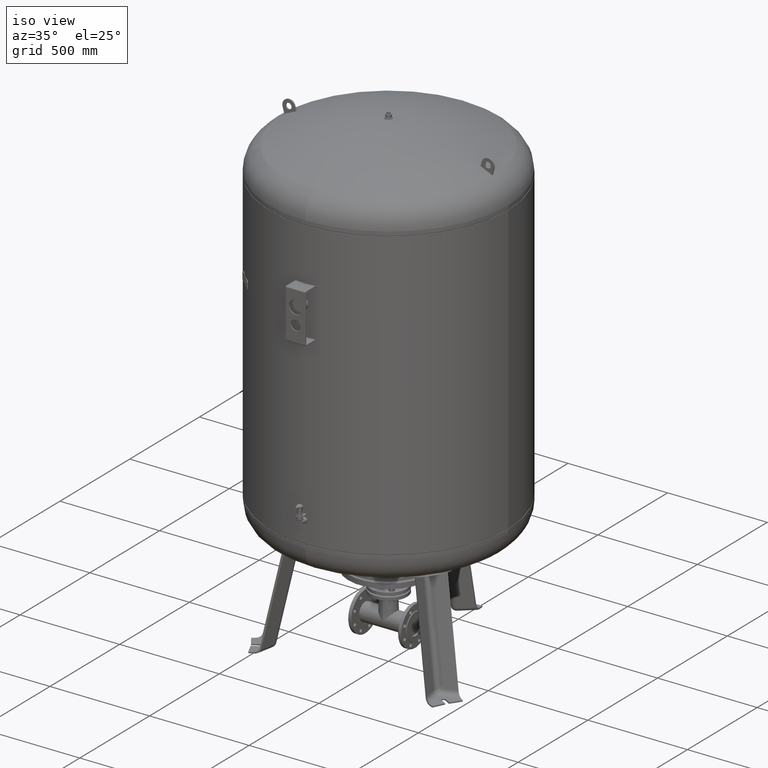
[diagram: clean part render]
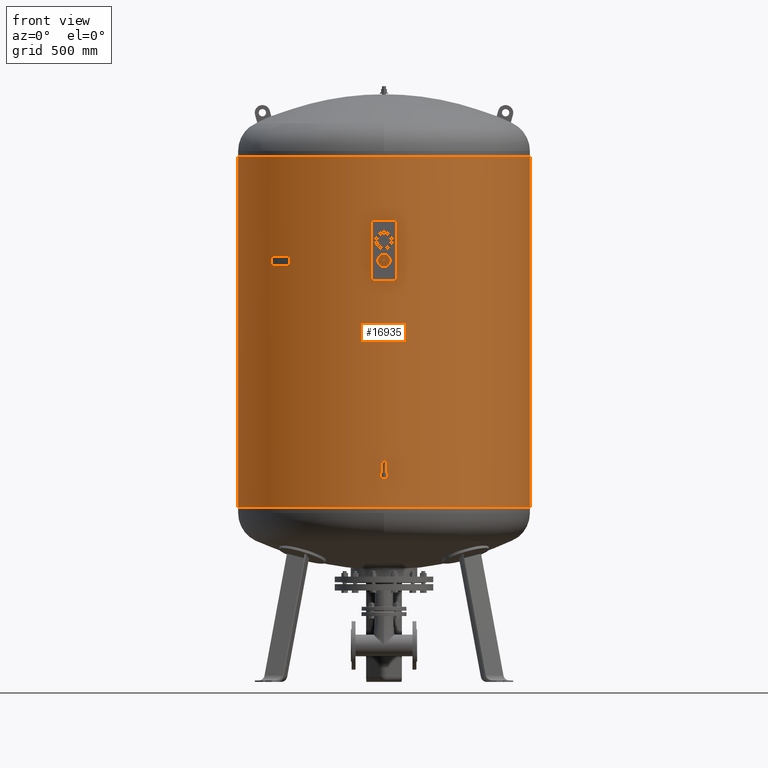
[diagram: tour spotlight — one face highlighted and labeled with its STEP entity id]
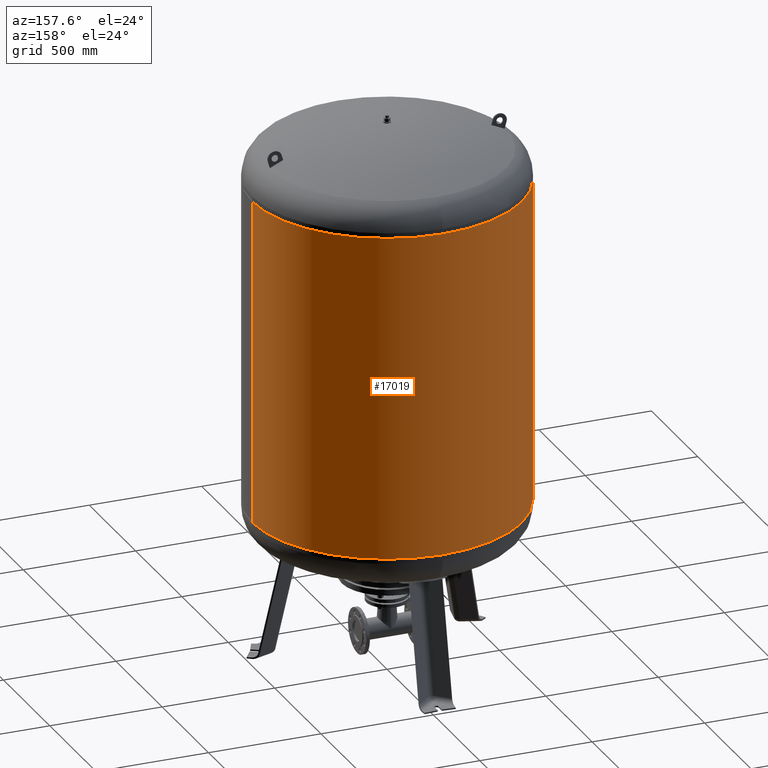
[diagram: tour spotlight — one face highlighted and labeled with its STEP entity id]
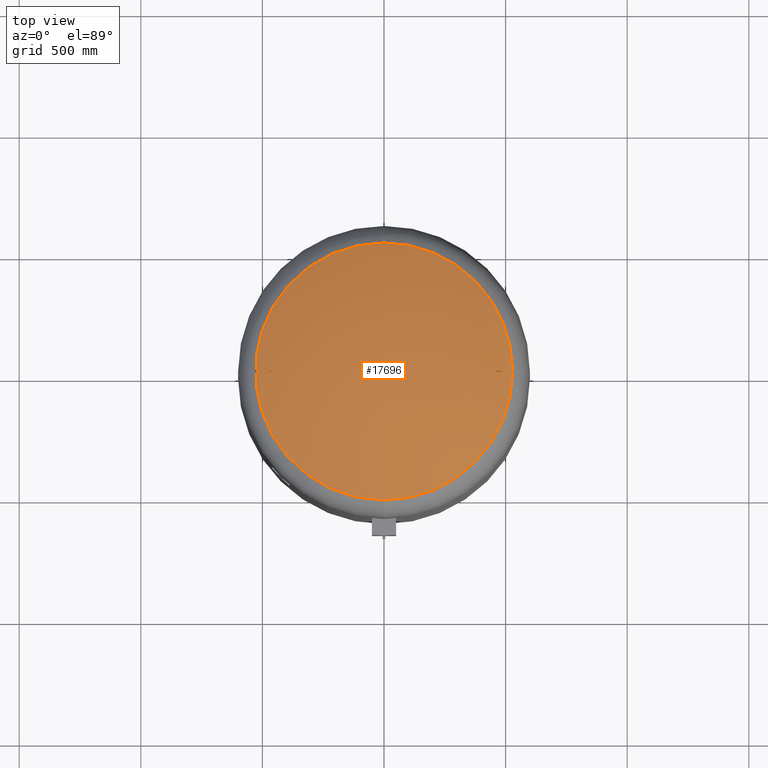
[diagram: tour spotlight — one face highlighted and labeled with its STEP entity id]
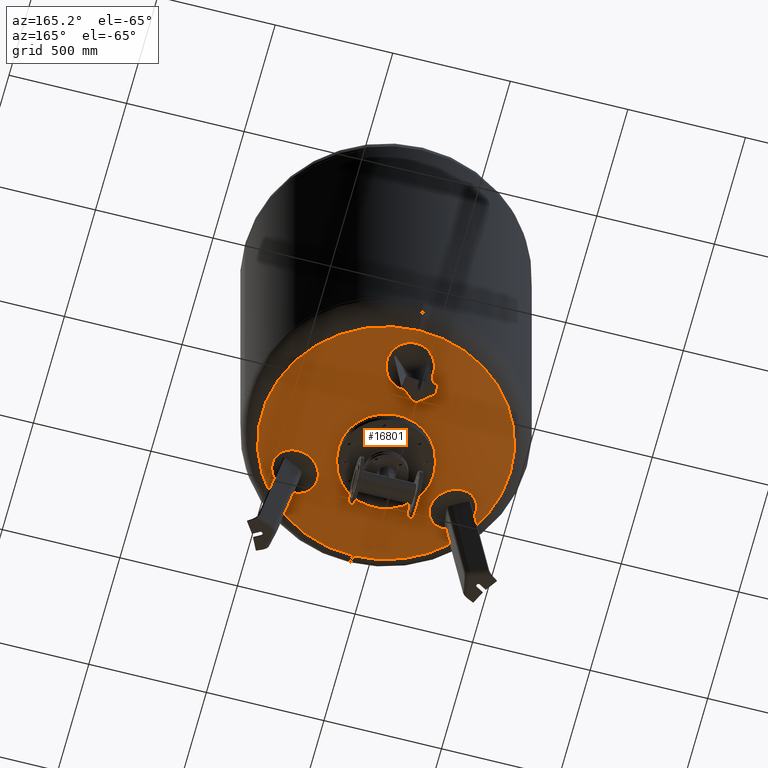
[diagram: tour spotlight — one face highlighted and labeled with its STEP entity id]
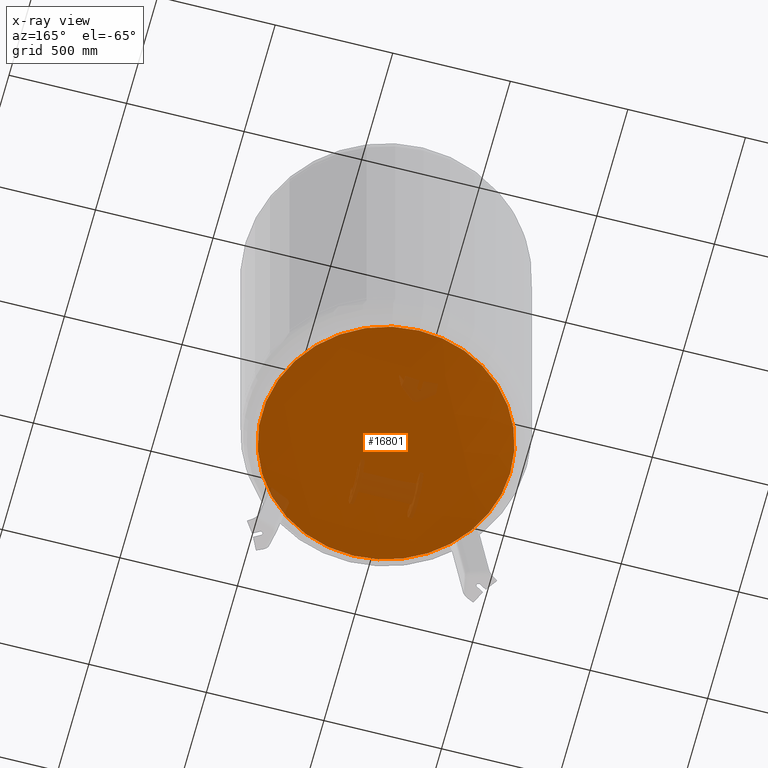
[diagram: x-ray of the same camera — body ghosted, this tour face saturated]
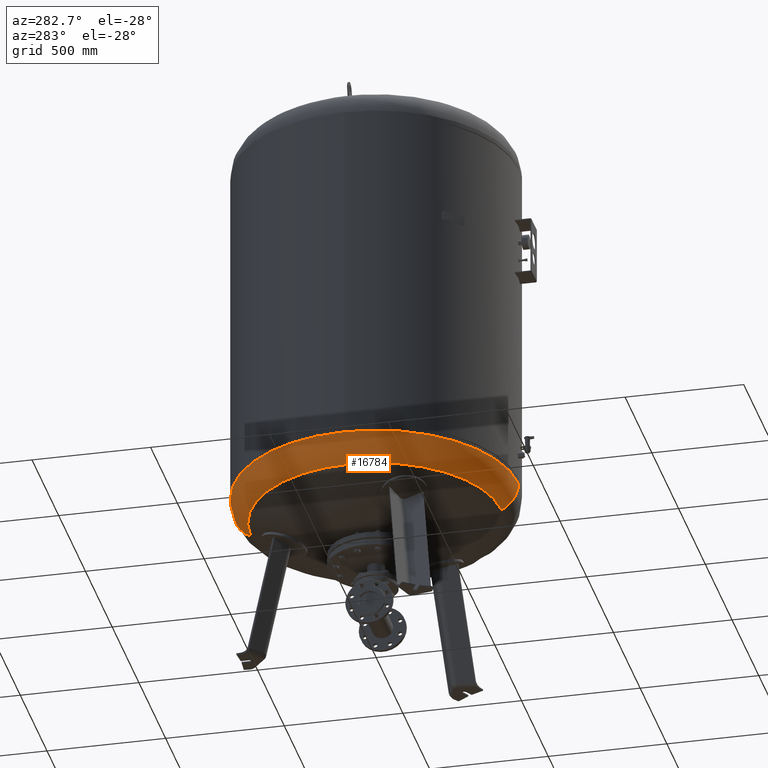
[diagram: tour spotlight — one face highlighted and labeled with its STEP entity id]
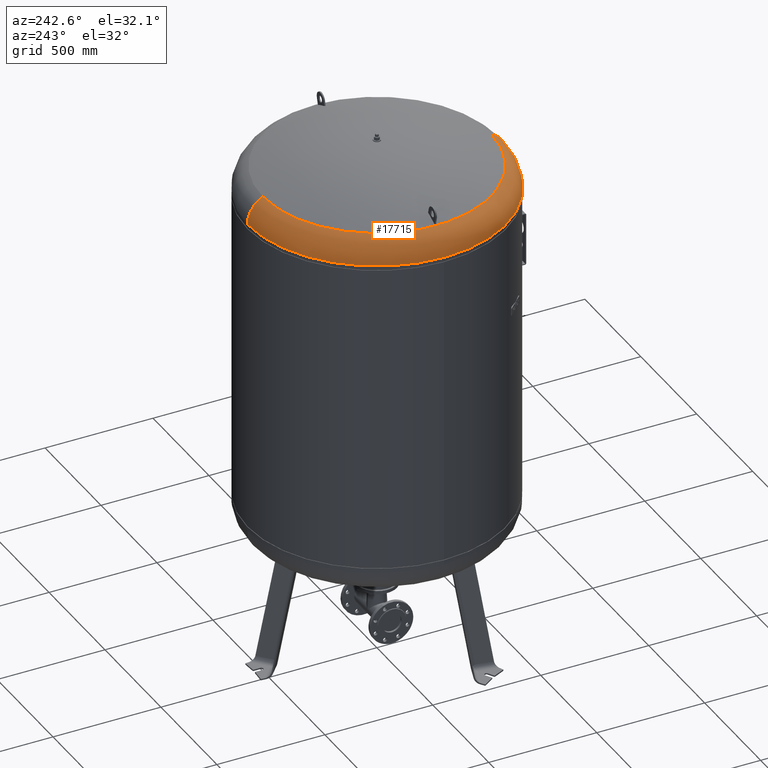
[diagram: tour spotlight — one face highlighted and labeled with its STEP entity id]
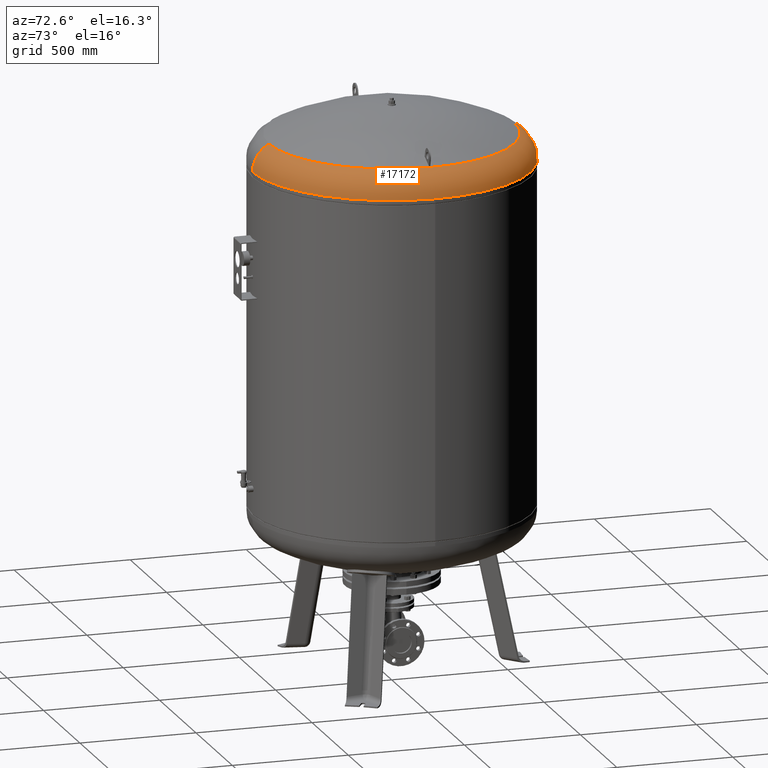
[diagram: tour spotlight — one face highlighted and labeled with its STEP entity id]
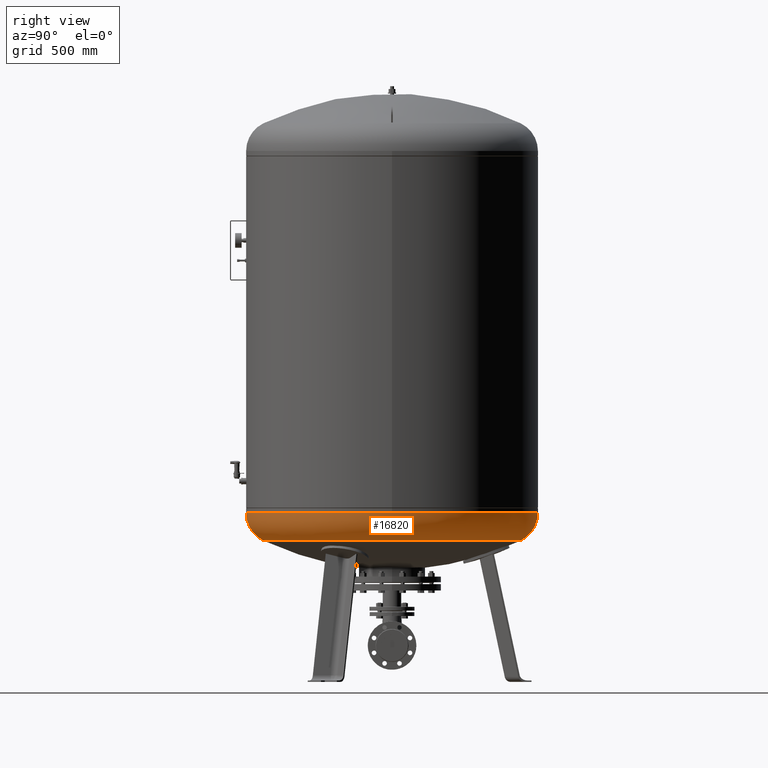
[diagram: tour spotlight — one face highlighted and labeled with its STEP entity id]
A machine part: a face-by-face anatomy tour. The part has 793 B-rep faces; the first image is the clean iso view, then the 8 largest visible faces are spotlighted one at a time (largest first), each with its STEP entity span.

Face 1 — front view, entity #16935. In plain terms, the highlighted cylindrical surface (partial cylindrical patch) has radius 600 mm, axis along (0, 0, 1).
Definition (entity closure, byte-faithful):
#16894=CARTESIAN_POINT('',(8.309455E-015,0.0,1800.0));
#16895=DIRECTION('',(2.301788E-017,0.0,1.0));
#16896=DIRECTION('',(1.0,0.0,0.0));
#16897=AXIS2_PLACEMENT_3D('',#16894,#16895,#16896);
#16898=CYLINDRICAL_SURFACE('',#16897,600.000000000000570);
#16899=CARTESIAN_POINT('',(600.000000000000800,0.0,2161.0));
#16900=VERTEX_POINT('',#16899);
#16901=CARTESIAN_POINT('',(600.0,0.0,716.999999999999660));
#16902=VERTEX_POINT('',#16901);
#16903=CARTESIAN_POINT('',(600.000000000000800,0.0,2161.0));
#16904=DIRECTION('',(0.0,0.0,-1.0));
#16905=VECTOR('',#16904,1444.000000000000500);
#16906=LINE('',#16903,#16905);
#16907=EDGE_CURVE('',#16900,#16902,#16906,.T.);
#16908=ORIENTED_EDGE('',*,*,#16907,.F.);
#16909=CARTESIAN_POINT('',(-600.000000000000570,-7.347638E-014,2161.0));
#16910=VERTEX_POINT('',#16909);
#16911=CARTESIAN_POINT('',(1.661891E-014,0.0,2161.0));
#16912=DIRECTION('',(0.0,0.0,1.0));
#16913=DIRECTION('',(1.0,0.0,0.0));
#16914=AXIS2_PLACEMENT_3D('',#16911,#16912,#16913);
#16915=CIRCLE('',#16914,600.000000000000800);
#16916=EDGE_CURVE('',#16910,#16900,#16915,.T.);
#16917=ORIENTED_EDGE('',*,*,#16916,.F.);
#16918=CARTESIAN_POINT('',(-599.999999999999890,-7.347638E-014,716.999999999999660));
#16919=VERTEX_POINT('',#16918);
#16920=CARTESIAN_POINT('',(-600.000000000000570,-7.347638E-014,2161.0));
#16921=DIRECTION('',(0.0,0.0,-1.0));
#16922=VECTOR('',#16921,1444.000000000000500);
#16923=LINE('',#16920,#16922);
#16924=EDGE_CURVE('',#16910,#16919,#16923,.T.);
#16925=ORIENTED_EDGE('',*,*,#16924,.T.);
#16926=CARTESIAN_POINT('',(-1.661891E-014,0.0,716.999999999999550));
#16927=DIRECTION('',(0.0,0.0,1.0));
#16928=DIRECTION('',(1.0,0.0,0.0));
#16929=AXIS2_PLACEMENT_3D('',#16926,#16927,#16928);
#16930=CIRCLE('',#16929,600.0);
#16931=EDGE_CURVE('',#16919,#16902,#16930,.T.);
#16932=ORIENTED_EDGE('',*,*,#16931,.T.);
#16933=EDGE_LOOP('',(#16908,#16917,#16925,#16932));
#16934=FACE_OUTER_BOUND('',#16933,.T.);
#16935=ADVANCED_FACE('',(#16934),#16898,.T.);

Face 2 — auxiliary view, entity #17019. In plain terms, the highlighted cylindrical surface (partial cylindrical patch) has radius 600 mm, axis along (0, 0, 1).
Definition (entity closure, byte-faithful):
#16899=CARTESIAN_POINT('',(600.000000000000800,0.0,2161.0));
#16900=VERTEX_POINT('',#16899);
#16901=CARTESIAN_POINT('',(600.0,0.0,716.999999999999660));
#16902=VERTEX_POINT('',#16901);
#16903=CARTESIAN_POINT('',(600.000000000000800,0.0,2161.0));
#16904=DIRECTION('',(0.0,0.0,-1.0));
#16905=VECTOR('',#16904,1444.000000000000500);
#16906=LINE('',#16903,#16905);
#16907=EDGE_CURVE('',#16900,#16902,#16906,.T.);
#16909=CARTESIAN_POINT('',(-600.000000000000570,-7.347638E-014,2161.0));
#16910=VERTEX_POINT('',#16909);
#16918=CARTESIAN_POINT('',(-599.999999999999890,-7.347638E-014,716.999999999999660));
#16919=VERTEX_POINT('',#16918);
#16920=CARTESIAN_POINT('',(-600.000000000000570,-7.347638E-014,2161.0));
#16921=DIRECTION('',(0.0,0.0,-1.0));
#16922=VECTOR('',#16921,1444.000000000000500);
#16923=LINE('',#16920,#16922);
#16924=EDGE_CURVE('',#16910,#16919,#16923,.T.);
#16992=CARTESIAN_POINT('',(-1.661891E-014,0.0,716.999999999999550));
#16993=DIRECTION('',(0.0,0.0,1.0));
#16994=DIRECTION('',(1.0,0.0,0.0));
#16995=AXIS2_PLACEMENT_3D('',#16992,#16993,#16994);
#16996=CIRCLE('',#16995,600.0);
#16997=EDGE_CURVE('',#16902,#16919,#16996,.T.);
#17002=CARTESIAN_POINT('',(8.309455E-015,0.0,1800.0));
#17003=DIRECTION('',(2.301788E-017,0.0,1.0));
#17004=DIRECTION('',(1.0,0.0,0.0));
#17005=AXIS2_PLACEMENT_3D('',#17002,#17003,#17004);
#17006=CYLINDRICAL_SURFACE('',#17005,600.000000000000570);
#17007=ORIENTED_EDGE('',*,*,#16907,.T.);
#17008=ORIENTED_EDGE('',*,*,#16997,.T.);
#17009=ORIENTED_EDGE('',*,*,#16924,.F.);
#17010=CARTESIAN_POINT('',(1.661891E-014,0.0,2161.0));
#17011=DIRECTION('',(0.0,0.0,1.0));
#17012=DIRECTION('',(1.0,0.0,0.0));
#17013=AXIS2_PLACEMENT_3D('',#17010,#17011,#17012);
#17014=CIRCLE('',#17013,600.000000000000800);
#17015=EDGE_CURVE('',#16900,#16910,#17014,.T.);
#17016=ORIENTED_EDGE('',*,*,#17015,.F.);
#17017=EDGE_LOOP('',(#17007,#17008,#17009,#17016));
#17018=FACE_OUTER_BOUND('',#17017,.T.);
#17019=ADVANCED_FACE('',(#17018),#17006,.T.);

Face 3 — top view, entity #17696. In plain terms, the highlighted spherical surface has radius 1207 mm.
Definition (entity closure, byte-faithful):
#17128=CARTESIAN_POINT('',(3.894773E-014,-528.621296296296240,2297.084570483804800));
#17129=VERTEX_POINT('',#17128);
#17145=CARTESIAN_POINT('',(1.036830E-013,528.621296296296240,2297.084570483804800));
#17146=VERTEX_POINT('',#17145);
#17154=CARTESIAN_POINT('',(528.621296296296240,-2.239550E-014,2297.084570483804800));
#17155=VERTEX_POINT('',#17154);
#17156=CARTESIAN_POINT('',(3.410787E-015,-2.239550E-014,2297.084570483804800));
#17157=DIRECTION('',(0.0,0.0,-1.0));
#17158=DIRECTION('',(1.0,0.0,0.0));
#17159=AXIS2_PLACEMENT_3D('',#17156,#17157,#17158);
#17160=CIRCLE('',#17159,528.621296296296240);
#17161=EDGE_CURVE('',#17146,#17155,#17160,.T.);
#17163=CARTESIAN_POINT('',(3.410787E-015,-2.239550E-014,2297.084570483804800));
#17164=DIRECTION('',(0.0,0.0,-1.0));
#17165=DIRECTION('',(1.0,0.0,0.0));
#17166=AXIS2_PLACEMENT_3D('',#17163,#17164,#17165);
#17167=CIRCLE('',#17166,528.621296296296240);
#17168=EDGE_CURVE('',#17155,#17129,#17167,.T.);
#17283=CARTESIAN_POINT('',(-463.451600218966230,-3.000000000000292,2326.474142479079100));
#17284=VERTEX_POINT('',#17283);
#17285=CARTESIAN_POINT('',(-521.618748390259610,-2.999999999999862,2300.464000933324300));
#17286=VERTEX_POINT('',#17285);
#17287=CARTESIAN_POINT('',(1.015543E-013,-3.000000000004973,1212.0));
#17288=DIRECTION('',(0.0,-1.0,0.0));
#17289=DIRECTION('',(0.0,0.0,1.0));
#17290=AXIS2_PLACEMENT_3D('',#17287,#17288,#17289);
#17291=CIRCLE('',#17290,1206.996271742378000);
#17292=EDGE_CURVE('',#17284,#17286,#17291,.T.);
#17335=CARTESIAN_POINT('',(-463.451600218966290,2.999999999999727,2326.474142479079500));
#17336=VERTEX_POINT('',#17335);
#17337=CARTESIAN_POINT('',(-143.673995061822890,7.801844E-013,1172.196972395376000));
#17338=DIRECTION('',(0.963701753162816,-6.720348E-015,0.266981143436978));
#17339=DIRECTION('',(-0.266981143436977,0.0,0.963701753162815));
#17340=AXIS2_PLACEMENT_3D('',#17337,#17338,#17339);
#17341=CIRCLE('',#17340,1197.757280143385700);
#17342=EDGE_CURVE('',#17336,#17284,#17341,.T.);
#17385=CARTESIAN_POINT('',(-521.618748390259730,3.000000000000095,2300.464000933324300));
#17386=VERTEX_POINT('',#17385);
#17387=CARTESIAN_POINT('',(-204.387205511080400,1.203566E-012,1155.377160358846400));
#17388=DIRECTION('',(-0.963701753162815,6.720348E-015,-0.266981143436977));
#17389=DIRECTION('',(0.266981143436977,0.0,-0.963701753162815));
#17390=AXIS2_PLACEMENT_3D('',#17387,#17388,#17389);
#17391=CIRCLE('',#17390,1188.220823018324600);
#17392=EDGE_CURVE('',#17286,#17386,#17391,.T.);
#17417=CARTESIAN_POINT('',(1.458865E-013,2.999999999995042,1212.0));
#17418=DIRECTION('',(0.0,1.0,0.0));
#17419=DIRECTION('',(0.0,0.0,-1.0));
#17420=AXIS2_PLACEMENT_3D('',#17417,#17418,#17419);
#17421=CIRCLE('',#17420,1206.996271742378000);
#17422=EDGE_CURVE('',#17386,#17336,#17421,.T.);
#17457=CARTESIAN_POINT('',(463.451600218966350,2.999999999999727,2326.474142479080000));
#17458=VERTEX_POINT('',#17457);
#17459=CARTESIAN_POINT('',(521.618748390259730,3.000000000000095,2300.464000933324300));
#17460=VERTEX_POINT('',#17459);
#17461=CARTESIAN_POINT('',(1.015543E-013,2.999999999995042,1212.0));
#17462=DIRECTION('',(0.0,1.0,0.0));
#17463=DIRECTION('',(0.0,0.0,-1.0));
#17464=AXIS2_PLACEMENT_3D('',#17461,#17462,#17463);
#17465=CIRCLE('',#17464,1206.996271742378000);
#17466=EDGE_CURVE('',#17458,#17460,#17465,.T.);
#17509=CARTESIAN_POINT('',(463.451600218966230,-3.000000000000292,2326.474142479079100));
#17510=VERTEX_POINT('',#17509);
#17511=CARTESIAN_POINT('',(143.673995061822890,7.801844E-013,1172.196972395376000));
#17512=DIRECTION('',(-0.963701753162816,-6.720348E-015,0.266981143436978));
#17513=DIRECTION('',(-0.266981143436977,0.0,-0.963701753162815));
#17514=AXIS2_PLACEMENT_3D('',#17511,#17512,#17513);
#17515=CIRCLE('',#17514,1197.757280143385700);
#17516=EDGE_CURVE('',#17510,#17458,#17515,.T.);
#17580=CARTESIAN_POINT('',(521.618748390259610,-2.999999999999862,2300.464000933324300));
#17581=VERTEX_POINT('',#17580);
#17582=CARTESIAN_POINT('',(204.387205511080450,1.203566E-012,1155.377160358846400));
#17583=DIRECTION('',(0.963701753162815,6.720348E-015,-0.266981143436977));
#17584=DIRECTION('',(0.266981143436977,0.0,0.963701753162815));
#17585=AXIS2_PLACEMENT_3D('',#17582,#17583,#17584);
#17586=CIRCLE('',#17585,1188.220823018324600);
#17587=EDGE_CURVE('',#17460,#17581,#17586,.T.);
#17651=CARTESIAN_POINT('',(1.458865E-013,-3.000000000004973,1212.0));
#17652=DIRECTION('',(0.0,-1.0,0.0));
#17653=DIRECTION('',(0.0,0.0,1.0));
#17654=AXIS2_PLACEMENT_3D('',#17651,#17652,#17653);
#17655=CIRCLE('',#17654,1206.996271742378000);
#17656=EDGE_CURVE('',#17581,#17510,#17655,.T.);
#17668=CARTESIAN_POINT('',(1.237204E-013,-2.217223E-013,1212.0));
#17669=DIRECTION('',(0.0,-1.0,0.0));
#17670=DIRECTION('',(-1.0,0.0,0.0));
#17671=AXIS2_PLACEMENT_3D('',#17668,#17669,#17670);
#17672=SPHERICAL_SURFACE('',#17671,1207.000000000000200);
#17673=ORIENTED_EDGE('',*,*,#17342,.T.);
#17674=ORIENTED_EDGE('',*,*,#17292,.T.);
#17675=ORIENTED_EDGE('',*,*,#17392,.T.);
#17676=ORIENTED_EDGE('',*,*,#17422,.T.);
#17677=EDGE_LOOP('',(#17673,#17674,#17675,#17676));
#17678=FACE_OUTER_BOUND('',#17677,.T.);
#17679=ORIENTED_EDGE('',*,*,#17516,.T.);
#17680=ORIENTED_EDGE('',*,*,#17466,.T.);
#17681=ORIENTED_EDGE('',*,*,#17587,.T.);
#17682=ORIENTED_EDGE('',*,*,#17656,.T.);
#17683=EDGE_LOOP('',(#17679,#17680,#17681,#17682));
#17684=FACE_BOUND('',#17683,.T.);
#17685=ORIENTED_EDGE('',*,*,#17168,.F.);
#17686=ORIENTED_EDGE('',*,*,#17161,.F.);
#17687=CARTESIAN_POINT('',(3.410787E-015,-2.239550E-014,2297.084570483804800));
#17688=DIRECTION('',(0.0,0.0,-1.0));
#17689=DIRECTION('',(1.0,0.0,0.0));
#17690=AXIS2_PLACEMENT_3D('',#17687,#17688,#17689);
#17691=CIRCLE('',#17690,528.621296296296240);
#17692=EDGE_CURVE('',#17129,#17146,#17691,.T.);
#17693=ORIENTED_EDGE('',*,*,#17692,.F.);
#17694=EDGE_LOOP('',(#17685,#17686,#17693));
#17695=FACE_BOUND('',#17694,.T.);
#17696=ADVANCED_FACE('',(#17678,#17684,#17695),#17672,.T.);

Face 4 — auxiliary view, entity #16801. An x-ray twin of the same camera follows (body ghosted, this face saturated) — the face is partly hidden behind the body. In plain terms, the highlighted spherical surface has radius 1207 mm.
Definition (entity closure, byte-faithful):
#16740=CARTESIAN_POINT('',(-5.387807E-014,-528.621296296296240,580.915429516194880));
#16741=VERTEX_POINT('',#16740);
#16757=CARTESIAN_POINT('',(-1.186134E-013,528.621296296296240,580.915429516195100));
#16758=VERTEX_POINT('',#16757);
#16766=CARTESIAN_POINT('',(-528.621296296296240,-2.239550E-014,580.915429516194990));
#16767=VERTEX_POINT('',#16766);
#16768=CARTESIAN_POINT('',(-1.834112E-014,-2.239550E-014,580.915429516194990));
#16769=DIRECTION('',(0.0,0.0,1.0));
#16770=DIRECTION('',(-1.0,0.0,0.0));
#16771=AXIS2_PLACEMENT_3D('',#16768,#16769,#16770);
#16772=CIRCLE('',#16771,528.621296296296240);
#16773=EDGE_CURVE('',#16758,#16767,#16772,.T.);
#16775=CARTESIAN_POINT('',(-1.834112E-014,-2.239550E-014,580.915429516194990));
#16776=DIRECTION('',(0.0,0.0,1.0));
#16777=DIRECTION('',(-1.0,0.0,0.0));
#16778=AXIS2_PLACEMENT_3D('',#16775,#16776,#16777);
#16779=CIRCLE('',#16778,528.621296296296240);
#16780=EDGE_CURVE('',#16767,#16741,#16779,.T.);
#16785=CARTESIAN_POINT('',(-2.715353E-013,-2.217223E-013,1666.0));
#16786=DIRECTION('',(0.0,-1.0,0.0));
#16787=DIRECTION('',(1.0,0.0,0.0));
#16788=AXIS2_PLACEMENT_3D('',#16785,#16786,#16787);
#16789=SPHERICAL_SURFACE('',#16788,1207.000000000000200);
#16790=ORIENTED_EDGE('',*,*,#16780,.F.);
#16791=ORIENTED_EDGE('',*,*,#16773,.F.);
#16792=CARTESIAN_POINT('',(-1.834112E-014,-2.239550E-014,580.915429516194990));
#16793=DIRECTION('',(0.0,0.0,1.0));
#16794=DIRECTION('',(-1.0,0.0,0.0));
#16795=AXIS2_PLACEMENT_3D('',#16792,#16793,#16794);
#16796=CIRCLE('',#16795,528.621296296296240);
#16797=EDGE_CURVE('',#16741,#16758,#16796,.T.);
#16798=ORIENTED_EDGE('',*,*,#16797,.F.);
#16799=EDGE_LOOP('',(#16790,#16791,#16798));
#16800=FACE_OUTER_BOUND('',#16799,.T.);
#16801=ADVANCED_FACE('',(#16800),#16789,.T.);

Face 5 — auxiliary view, entity #16784. In plain terms, the highlighted toroidal blend (fillet) surface has major radius 473 mm and minor (blend) radius 127 mm.
Definition (entity closure, byte-faithful):
#16689=CARTESIAN_POINT('',(-600.0,-4.336858E-014,695.087542566272190));
#16690=VERTEX_POINT('',#16689);
#16714=CARTESIAN_POINT('',(-1.445307E-013,600.0,695.087542566272420));
#16715=VERTEX_POINT('',#16714);
#16723=CARTESIAN_POINT('',(-3.551733E-014,-4.336858E-014,695.087542566272300));
#16724=DIRECTION('',(0.0,0.0,1.0));
#16725=DIRECTION('',(-1.0,0.0,0.0));
#16726=AXIS2_PLACEMENT_3D('',#16723,#16724,#16725);
#16727=CIRCLE('',#16726,600.0);
#16728=EDGE_CURVE('',#16715,#16690,#16727,.T.);
#16733=CARTESIAN_POINT('',(-7.105427E-014,-4.336858E-014,695.087542566272300));
#16734=DIRECTION('',(-1.504413E-016,-1.836970E-016,1.0));
#16735=DIRECTION('',(0.0,-1.0,0.0));
#16736=AXIS2_PLACEMENT_3D('',#16733,#16734,#16735);
#16737=TOROIDAL_SURFACE('',#16736,472.999999999999890,127.000000000000010);
#16738=CARTESIAN_POINT('',(-7.105427E-014,-600.0,695.087542566272190));
#16739=VERTEX_POINT('',#16738);
#16740=CARTESIAN_POINT('',(-5.387807E-014,-528.621296296296240,580.915429516194880));
#16741=VERTEX_POINT('',#16740);
#16742=CARTESIAN_POINT('',(-7.105427E-014,-472.999999999999940,695.087542566272190));
#16743=DIRECTION('',(1.0,0.0,0.0));
#16744=DIRECTION('',(0.0,-1.0,0.0));
#16745=AXIS2_PLACEMENT_3D('',#16742,#16743,#16744);
#16746=CIRCLE('',#16745,127.000000000000010);
#16747=EDGE_CURVE('',#16739,#16741,#16746,.T.);
#16748=ORIENTED_EDGE('',*,*,#16747,.F.);
#16749=CARTESIAN_POINT('',(-3.551733E-014,-4.336858E-014,695.087542566272300));
#16750=DIRECTION('',(0.0,0.0,1.0));
#16751=DIRECTION('',(-1.0,0.0,0.0));
#16752=AXIS2_PLACEMENT_3D('',#16749,#16750,#16751);
#16753=CIRCLE('',#16752,600.0);
#16754=EDGE_CURVE('',#16690,#16739,#16753,.T.);
#16755=ORIENTED_EDGE('',*,*,#16754,.F.);
#16756=ORIENTED_EDGE('',*,*,#16728,.F.);
#16757=CARTESIAN_POINT('',(-1.186134E-013,528.621296296296240,580.915429516195100));
#16758=VERTEX_POINT('',#16757);
#16759=CARTESIAN_POINT('',(-1.289782E-013,472.999999999999830,695.087542566272420));
#16760=DIRECTION('',(-1.0,0.0,0.0));
#16761=DIRECTION('',(0.0,1.0,0.0));
#16762=AXIS2_PLACEMENT_3D('',#16759,#16760,#16761);
#16763=CIRCLE('',#16762,127.000000000000010);
#16764=EDGE_CURVE('',#16715,#16758,#16763,.T.);
#16765=ORIENTED_EDGE('',*,*,#16764,.T.);
#16766=CARTESIAN_POINT('',(-528.621296296296240,-2.239550E-014,580.915429516194990));
#16767=VERTEX_POINT('',#16766);
#16768=CARTESIAN_POINT('',(-1.834112E-014,-2.239550E-014,580.915429516194990));
#16769=DIRECTION('',(0.0,0.0,1.0));
#16770=DIRECTION('',(-1.0,0.0,0.0));
#16771=AXIS2_PLACEMENT_3D('',#16768,#16769,#16770);
#16772=CIRCLE('',#16771,528.621296296296240);
#16773=EDGE_CURVE('',#16758,#16767,#16772,.T.);
#16774=ORIENTED_EDGE('',*,*,#16773,.T.);
#16775=CARTESIAN_POINT('',(-1.834112E-014,-2.239550E-014,580.915429516194990));
#16776=DIRECTION('',(0.0,0.0,1.0));
#16777=DIRECTION('',(-1.0,0.0,0.0));
#16778=AXIS2_PLACEMENT_3D('',#16775,#16776,#16777);
#16779=CIRCLE('',#16778,528.621296296296240);
#16780=EDGE_CURVE('',#16767,#16741,#16779,.T.);
#16781=ORIENTED_EDGE('',*,*,#16780,.T.);
#16782=EDGE_LOOP('',(#16748,#16755,#16756,#16765,#16774,#16781));
#16783=FACE_OUTER_BOUND('',#16782,.T.);
#16784=ADVANCED_FACE('',(#16783),#16737,.T.);

Face 6 — auxiliary view, entity #17715. In plain terms, the highlighted toroidal blend (fillet) surface has major radius 473 mm and minor (blend) radius 127 mm.
Definition (entity closure, byte-faithful):
#17094=CARTESIAN_POINT('',(-599.999999999999890,3.010780E-014,2182.912457433727500));
#17095=VERTEX_POINT('',#17094);
#17102=CARTESIAN_POINT('',(1.156183E-013,600.0,2182.912457433727500));
#17103=VERTEX_POINT('',#17102);
#17104=CARTESIAN_POINT('',(6.604942E-015,-4.336858E-014,2182.912457433727500));
#17105=DIRECTION('',(0.0,0.0,-1.0));
#17106=DIRECTION('',(1.0,0.0,0.0));
#17107=AXIS2_PLACEMENT_3D('',#17104,#17105,#17106);
#17108=CIRCLE('',#17107,600.0);
#17109=EDGE_CURVE('',#17095,#17103,#17108,.T.);
#17126=CARTESIAN_POINT('',(4.214189E-014,-600.0,2182.912457433727500));
#17127=VERTEX_POINT('',#17126);
#17128=CARTESIAN_POINT('',(3.894773E-014,-528.621296296296240,2297.084570483804800));
#17129=VERTEX_POINT('',#17128);
#17130=CARTESIAN_POINT('',(4.214189E-014,-472.999999999999940,2182.912457433727500));
#17131=DIRECTION('',(-1.0,0.0,0.0));
#17132=DIRECTION('',(0.0,-1.0,0.0));
#17133=AXIS2_PLACEMENT_3D('',#17130,#17131,#17132);
#17134=CIRCLE('',#17133,127.000000000000010);
#17135=EDGE_CURVE('',#17127,#17129,#17134,.T.);
#17145=CARTESIAN_POINT('',(1.036830E-013,528.621296296296240,2297.084570483804800));
#17146=VERTEX_POINT('',#17145);
#17147=CARTESIAN_POINT('',(1.000658E-013,472.999999999999830,2182.912457433727500));
#17148=DIRECTION('',(1.0,0.0,0.0));
#17149=DIRECTION('',(0.0,1.0,0.0));
#17150=AXIS2_PLACEMENT_3D('',#17147,#17148,#17149);
#17151=CIRCLE('',#17150,127.000000000000010);
#17152=EDGE_CURVE('',#17103,#17146,#17151,.T.);
#17687=CARTESIAN_POINT('',(3.410787E-015,-2.239550E-014,2297.084570483804800));
#17688=DIRECTION('',(0.0,0.0,-1.0));
#17689=DIRECTION('',(1.0,0.0,0.0));
#17690=AXIS2_PLACEMENT_3D('',#17687,#17688,#17689);
#17691=CIRCLE('',#17690,528.621296296296240);
#17692=EDGE_CURVE('',#17129,#17146,#17691,.T.);
#17697=CARTESIAN_POINT('',(4.214189E-014,-4.336858E-014,2182.912457433727500));
#17698=DIRECTION('',(2.797667E-017,-1.836970E-016,-1.0));
#17699=DIRECTION('',(0.0,-1.0,0.0));
#17700=AXIS2_PLACEMENT_3D('',#17697,#17698,#17699);
#17701=TOROIDAL_SURFACE('',#17700,472.999999999999890,127.000000000000010);
#17702=ORIENTED_EDGE('',*,*,#17135,.T.);
#17703=ORIENTED_EDGE('',*,*,#17692,.T.);
#17704=ORIENTED_EDGE('',*,*,#17152,.F.);
#17705=ORIENTED_EDGE('',*,*,#17109,.F.);
#17706=CARTESIAN_POINT('',(6.604942E-015,-4.336858E-014,2182.912457433727500));
#17707=DIRECTION('',(0.0,0.0,-1.0));
#17708=DIRECTION('',(1.0,0.0,0.0));
#17709=AXIS2_PLACEMENT_3D('',#17706,#17707,#17708);
#17710=CIRCLE('',#17709,600.0);
#17711=EDGE_CURVE('',#17127,#17095,#17710,.T.);
#17712=ORIENTED_EDGE('',*,*,#17711,.F.);
#17713=EDGE_LOOP('',(#17702,#17703,#17704,#17705,#17712));
#17714=FACE_OUTER_BOUND('',#17713,.T.);
#17715=ADVANCED_FACE('',(#17714),#17701,.T.);

Face 7 — auxiliary view, entity #17172. In plain terms, the highlighted toroidal blend (fillet) surface has major radius 473 mm and minor (blend) radius 127 mm.
Definition (entity closure, byte-faithful):
#17077=CARTESIAN_POINT('',(600.0,-4.336858E-014,2182.912457433727900));
#17078=VERTEX_POINT('',#17077);
#17102=CARTESIAN_POINT('',(1.156183E-013,600.0,2182.912457433727500));
#17103=VERTEX_POINT('',#17102);
#17111=CARTESIAN_POINT('',(6.604942E-015,-4.336858E-014,2182.912457433727500));
#17112=DIRECTION('',(0.0,0.0,-1.0));
#17113=DIRECTION('',(1.0,0.0,0.0));
#17114=AXIS2_PLACEMENT_3D('',#17111,#17112,#17113);
#17115=CIRCLE('',#17114,600.0);
#17116=EDGE_CURVE('',#17103,#17078,#17115,.T.);
#17121=CARTESIAN_POINT('',(4.214189E-014,-4.336858E-014,2182.912457433727500));
#17122=DIRECTION('',(2.797667E-017,-1.836970E-016,-1.0));
#17123=DIRECTION('',(0.0,-1.0,0.0));
#17124=AXIS2_PLACEMENT_3D('',#17121,#17122,#17123);
#17125=TOROIDAL_SURFACE('',#17124,472.999999999999890,127.000000000000010);
#17126=CARTESIAN_POINT('',(4.214189E-014,-600.0,2182.912457433727500));
#17127=VERTEX_POINT('',#17126);
#17128=CARTESIAN_POINT('',(3.894773E-014,-528.621296296296240,2297.084570483804800));
#17129=VERTEX_POINT('',#17128);
#17130=CARTESIAN_POINT('',(4.214189E-014,-472.999999999999940,2182.912457433727500));
#17131=DIRECTION('',(-1.0,0.0,0.0));
#17132=DIRECTION('',(0.0,-1.0,0.0));
#17133=AXIS2_PLACEMENT_3D('',#17130,#17131,#17132);
#17134=CIRCLE('',#17133,127.000000000000010);
#17135=EDGE_CURVE('',#17127,#17129,#17134,.T.);
#17136=ORIENTED_EDGE('',*,*,#17135,.F.);
#17137=CARTESIAN_POINT('',(6.604942E-015,-4.336858E-014,2182.912457433727500));
#17138=DIRECTION('',(0.0,0.0,-1.0));
#17139=DIRECTION('',(1.0,0.0,0.0));
#17140=AXIS2_PLACEMENT_3D('',#17137,#17138,#17139);
#17141=CIRCLE('',#17140,600.0);
#17142=EDGE_CURVE('',#17078,#17127,#17141,.T.);
#17143=ORIENTED_EDGE('',*,*,#17142,.F.);
#17144=ORIENTED_EDGE('',*,*,#17116,.F.);
#17145=CARTESIAN_POINT('',(1.036830E-013,528.621296296296240,2297.084570483804800));
#17146=VERTEX_POINT('',#17145);
#17147=CARTESIAN_POINT('',(1.000658E-013,472.999999999999830,2182.912457433727500));
#17148=DIRECTION('',(1.0,0.0,0.0));
#17149=DIRECTION('',(0.0,1.0,0.0));
#17150=AXIS2_PLACEMENT_3D('',#17147,#17148,#17149);
#17151=CIRCLE('',#17150,127.000000000000010);
#17152=EDGE_CURVE('',#17103,#17146,#17151,.T.);
#17153=ORIENTED_EDGE('',*,*,#17152,.T.);
#17154=CARTESIAN_POINT('',(528.621296296296240,-2.239550E-014,2297.084570483804800));
#17155=VERTEX_POINT('',#17154);
#17156=CARTESIAN_POINT('',(3.410787E-015,-2.239550E-014,2297.084570483804800));
#17157=DIRECTION('',(0.0,0.0,-1.0));
#17158=DIRECTION('',(1.0,0.0,0.0));
#17159=AXIS2_PLACEMENT_3D('',#17156,#17157,#17158);
#17160=CIRCLE('',#17159,528.621296296296240);
#17161=EDGE_CURVE('',#17146,#17155,#17160,.T.);
#17162=ORIENTED_EDGE('',*,*,#17161,.T.);
#17163=CARTESIAN_POINT('',(3.410787E-015,-2.239550E-014,2297.084570483804800));
#17164=DIRECTION('',(0.0,0.0,-1.0));
#17165=DIRECTION('',(1.0,0.0,0.0));
#17166=AXIS2_PLACEMENT_3D('',#17163,#17164,#17165);
#17167=CIRCLE('',#17166,528.621296296296240);
#17168=EDGE_CURVE('',#17155,#17129,#17167,.T.);
#17169=ORIENTED_EDGE('',*,*,#17168,.T.);
#17170=EDGE_LOOP('',(#17136,#17143,#17144,#17153,#17162,#17169));
#17171=FACE_OUTER_BOUND('',#17170,.T.);
#17172=ADVANCED_FACE('',(#17171),#17125,.T.);

Face 8 — right view, entity #16820. In plain terms, the highlighted toroidal blend (fillet) surface has major radius 473 mm and minor (blend) radius 127 mm.
Definition (entity closure, byte-faithful):
#16706=CARTESIAN_POINT('',(599.999999999999890,3.010780E-014,695.087542566272300));
#16707=VERTEX_POINT('',#16706);
#16714=CARTESIAN_POINT('',(-1.445307E-013,600.0,695.087542566272420));
#16715=VERTEX_POINT('',#16714);
#16716=CARTESIAN_POINT('',(-3.551733E-014,-4.336858E-014,695.087542566272300));
#16717=DIRECTION('',(0.0,0.0,1.0));
#16718=DIRECTION('',(-1.0,0.0,0.0));
#16719=AXIS2_PLACEMENT_3D('',#16716,#16717,#16718);
#16720=CIRCLE('',#16719,600.0);
#16721=EDGE_CURVE('',#16707,#16715,#16720,.T.);
#16738=CARTESIAN_POINT('',(-7.105427E-014,-600.0,695.087542566272190));
#16739=VERTEX_POINT('',#16738);
#16740=CARTESIAN_POINT('',(-5.387807E-014,-528.621296296296240,580.915429516194880));
#16741=VERTEX_POINT('',#16740);
#16742=CARTESIAN_POINT('',(-7.105427E-014,-472.999999999999940,695.087542566272190));
#16743=DIRECTION('',(1.0,0.0,0.0));
#16744=DIRECTION('',(0.0,-1.0,0.0));
#16745=AXIS2_PLACEMENT_3D('',#16742,#16743,#16744);
#16746=CIRCLE('',#16745,127.000000000000010);
#16747=EDGE_CURVE('',#16739,#16741,#16746,.T.);
#16757=CARTESIAN_POINT('',(-1.186134E-013,528.621296296296240,580.915429516195100));
#16758=VERTEX_POINT('',#16757);
#16759=CARTESIAN_POINT('',(-1.289782E-013,472.999999999999830,695.087542566272420));
#16760=DIRECTION('',(-1.0,0.0,0.0));
#16761=DIRECTION('',(0.0,1.0,0.0));
#16762=AXIS2_PLACEMENT_3D('',#16759,#16760,#16761);
#16763=CIRCLE('',#16762,127.000000000000010);
#16764=EDGE_CURVE('',#16715,#16758,#16763,.T.);
#16792=CARTESIAN_POINT('',(-1.834112E-014,-2.239550E-014,580.915429516194990));
#16793=DIRECTION('',(0.0,0.0,1.0));
#16794=DIRECTION('',(-1.0,0.0,0.0));
#16795=AXIS2_PLACEMENT_3D('',#16792,#16793,#16794);
#16796=CIRCLE('',#16795,528.621296296296240);
#16797=EDGE_CURVE('',#16741,#16758,#16796,.T.);
#16802=CARTESIAN_POINT('',(-7.105427E-014,-4.336858E-014,695.087542566272300));
#16803=DIRECTION('',(-1.504413E-016,-1.836970E-016,1.0));
#16804=DIRECTION('',(0.0,-1.0,0.0));
#16805=AXIS2_PLACEMENT_3D('',#16802,#16803,#16804);
#16806=TOROIDAL_SURFACE('',#16805,472.999999999999890,127.000000000000010);
#16807=ORIENTED_EDGE('',*,*,#16747,.T.);
#16808=ORIENTED_EDGE('',*,*,#16797,.T.);
#16809=ORIENTED_EDGE('',*,*,#16764,.F.);
#16810=ORIENTED_EDGE('',*,*,#16721,.F.);
#16811=CARTESIAN_POINT('',(-3.551733E-014,-4.336858E-014,695.087542566272300));
#16812=DIRECTION('',(0.0,0.0,1.0));
#16813=DIRECTION('',(-1.0,0.0,0.0));
#16814=AXIS2_PLACEMENT_3D('',#16811,#16812,#16813);
#16815=CIRCLE('',#16814,600.0);
#16816=EDGE_CURVE('',#16739,#16707,#16815,.T.);
#16817=ORIENTED_EDGE('',*,*,#16816,.F.);
#16818=EDGE_LOOP('',(#16807,#16808,#16809,#16810,#16817));
#16819=FACE_OUTER_BOUND('',#16818,.T.);
#16820=ADVANCED_FACE('',(#16819),#16806,.T.);